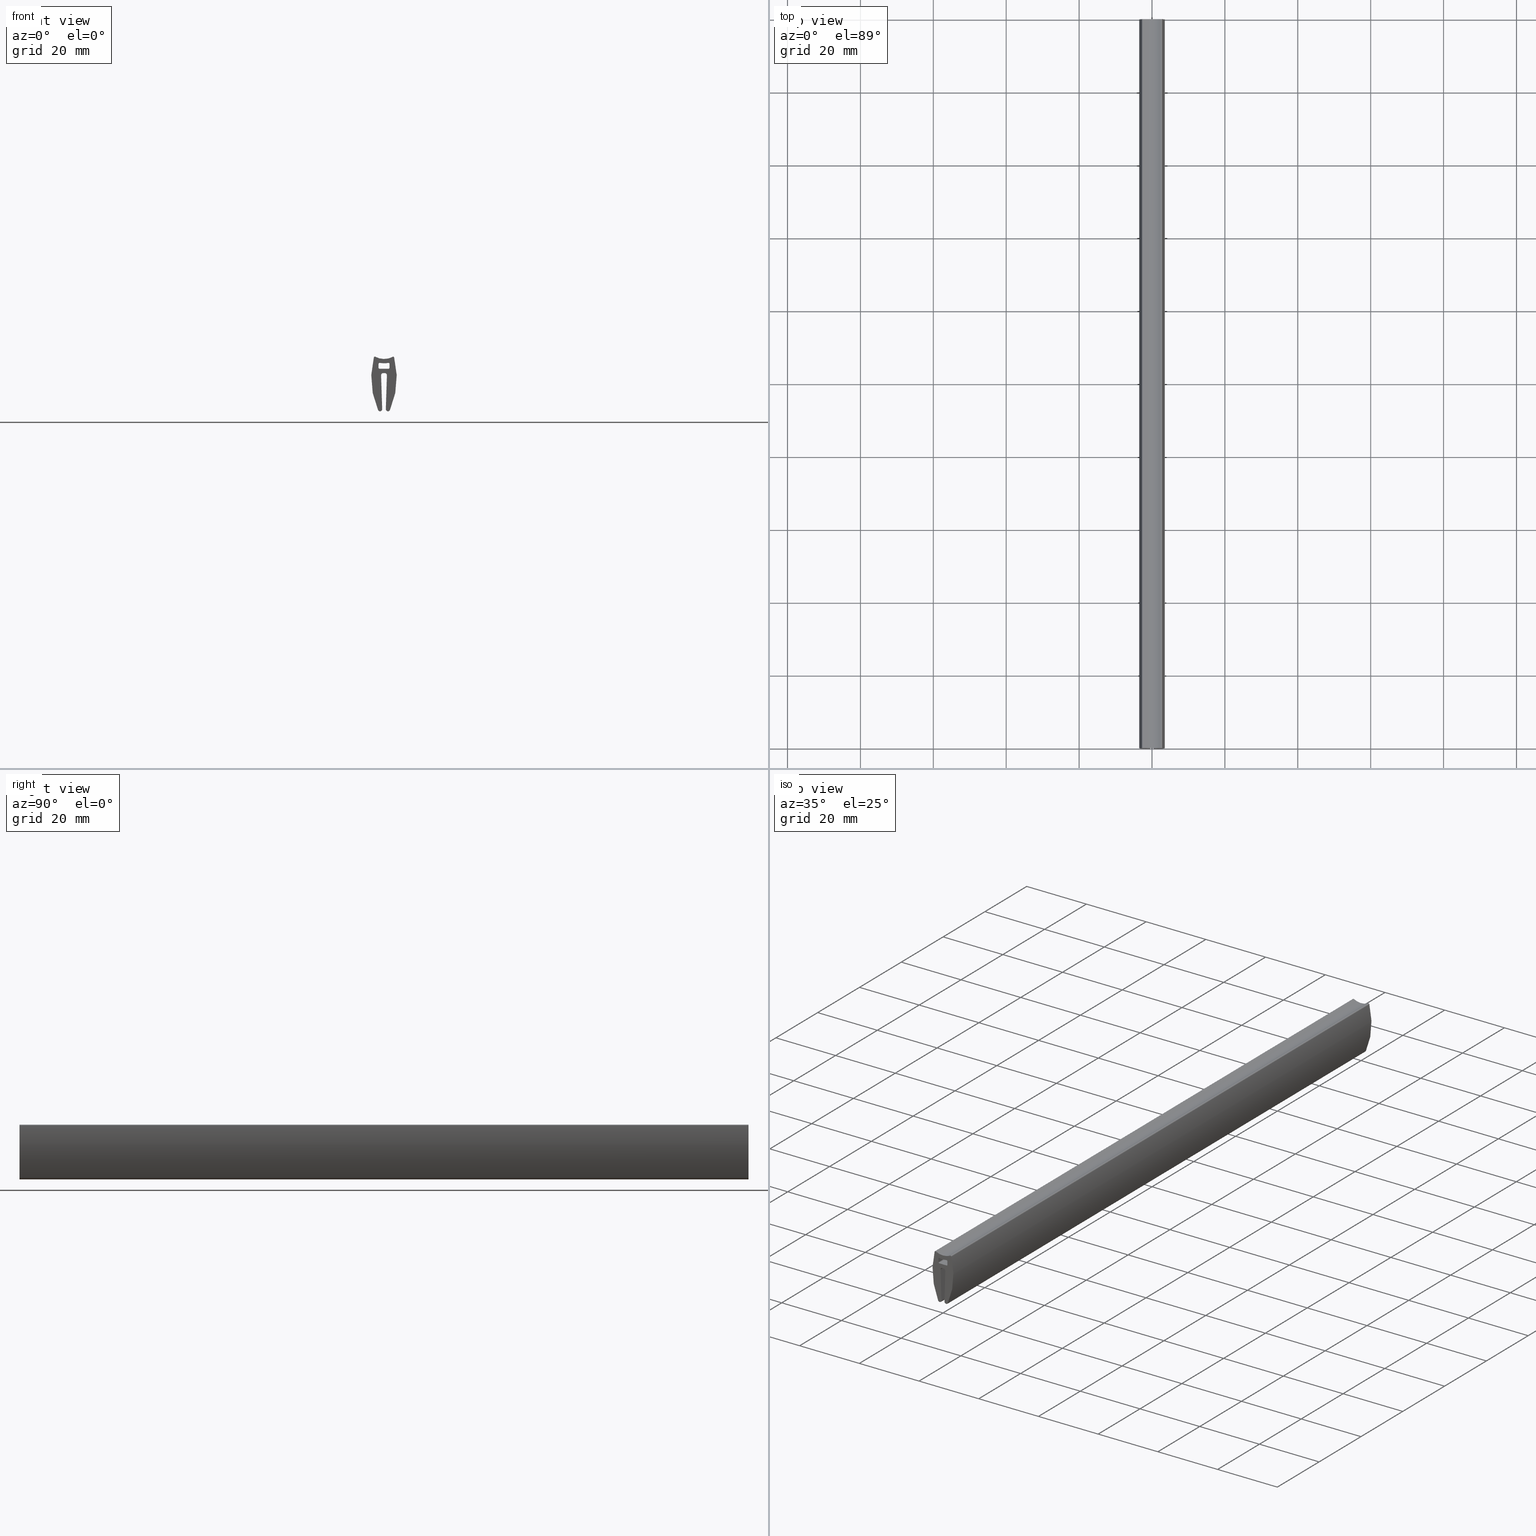
[diagram: canonical four-view strip — front | top / right | iso, engineering-drawing reading convention]
A machine part, canonical four-view strip (front | top / right | iso — engineering-drawing reading convention). The complete STEP part file that produces these views, byte-faithful:
ISO-10303-21;
HEADER;
/****************************************************************
 * Generated by software with PDE/Lib inside                    *
 * PDElib Version 4.4.1-0003, patched  Thursday August 19 11:58 *
 * International Technegroup Inc. (www.iti-oh.com)              *
 ****************************************************************/
FILE_DESCRIPTION((''),'2;1');
FILE_NAME('','2005-07-15T10:04:24',(''),(''),'','CADfix','');
FILE_SCHEMA(('AUTOMOTIVE_DESIGN'));
ENDSEC;
DATA;
#5=APPLICATION_CONTEXT('automotive design');
#6=APPLICATION_PROTOCOL_DEFINITION('Draft International Standard','automotive_design',1998,#5);
#7=PRODUCT_CONTEXT('None',#5,'mechanical');
#8=PRODUCT('gasket','','None',(#7));
#9=PRODUCT_RELATED_PRODUCT_CATEGORY('part','description',(#8));
#10=PRODUCT_DEFINITION_FORMATION('None','None',#8);
#11=PRODUCT_DEFINITION_CONTEXT('part definition',#5,'design');
#12=PRODUCT_DEFINITION('None','None',#10,#11);
#18=(NAMED_UNIT(*)PLANE_ANGLE_UNIT()SI_UNIT($,.RADIAN.));
#19=DIMENSIONAL_EXPONENTS(0.0,0.0,0.0,0.0,0.0,0.0,0.0);
#20=PLANE_ANGLE_MEASURE_WITH_UNIT(PLANE_ANGLE_MEASURE(0.017453292500000),#18);
#24=(CONVERSION_BASED_UNIT('DEGREE',#20)NAMED_UNIT(#19)PLANE_ANGLE_UNIT());
#28=(NAMED_UNIT(*)SI_UNIT($,.STERADIAN.)SOLID_ANGLE_UNIT());
#32=(LENGTH_UNIT()NAMED_UNIT(*)SI_UNIT(.MILLI.,.METRE.));
#34=UNCERTAINTY_MEASURE_WITH_UNIT(LENGTH_MEASURE(0.001000000000000),#32,'DISTANCE_ACCURACY_VALUE','');
#36=(GEOMETRIC_REPRESENTATION_CONTEXT(3)GLOBAL_UNCERTAINTY_ASSIGNED_CONTEXT((#34))GLOBAL_UNIT_ASSIGNED_CONTEXT((#24,#28,#32))REPRESENTATION_CONTEXT('None','None'));
#37=AXIS2_PLACEMENT_3D('',#38,#39,#40);
#38=CARTESIAN_POINT('',(0.0,0.0,0.0));
#39=DIRECTION('',(0.0,0.0,1.0));
#40=DIRECTION('',(1.0,0.0,0.0));
#41=ADVANCED_BREP_SHAPE_REPRESENTATION('',(#37,#1055),#36);
#42=PRODUCT_DEFINITION_SHAPE('','',#12);
#43=SHAPE_DEFINITION_REPRESENTATION(#42,#41);
#44=CARTESIAN_POINT('',(-3.848686032314022,0.0,1.375884219740015));
#45=CARTESIAN_POINT('',(3.848686085570946,0.0,1.375884219740015));
#46=CARTESIAN_POINT('',(-3.848686032314022,0.0,-15.122077586840909));
#47=CARTESIAN_POINT('',(3.848686085570946,0.0,-15.122077586840909));
#48=B_SPLINE_SURFACE_WITH_KNOTS('',1,1,((#44,#46),(#45,#47)),.UNSPECIFIED.,.F.,.F.,.U.,(2,2),(2,2),(0.0,7.697372117884967),(0.0,16.497961806580921),.UNSPECIFIED.);
#49=CARTESIAN_POINT('',(1.627461204812235,0.0,-14.022243352566640));
#50=VERTEX_POINT('',#49);
#51=CARTESIAN_POINT('',(2.790322580653415,0.0,0.402254483160042));
#52=VERTEX_POINT('',#51);
#53=CARTESIAN_POINT('',(1.627461204812235,0.0,-14.022243352566640));
#54=CARTESIAN_POINT('',(4.720688985627681,0.0,-7.012488265444718));
#55=CARTESIAN_POINT('',(2.790322580653415,0.0,0.402254483160042));
#63=(BOUNDED_CURVE()B_SPLINE_CURVE(2,(#53,#54,#55),.UNSPECIFIED.,.F.,.U.)CURVE()GEOMETRIC_REPRESENTATION_ITEM()QUASI_UNIFORM_CURVE()RATIONAL_B_SPLINE_CURVE((1.0,0.944367167422079,1.0))REPRESENTATION_ITEM(''));
#64=EDGE_CURVE('',#50,#52,#63,.T.);
#65=ORIENTED_EDGE('',*,*,#64,.T.);
#66=CARTESIAN_POINT('',(2.358490566046645,0.0,0.591199454509585));
#67=VERTEX_POINT('',#66);
#68=CARTESIAN_POINT('',(2.790322580653417,0.0,0.402254483160043));
#69=CARTESIAN_POINT('',(2.753640966004908,0.0,0.543152467874352));
#70=CARTESIAN_POINT('',(2.620255514252093,0.0,0.601514306523186));
#71=CARTESIAN_POINT('',(2.486870062499277,0.0,0.659876145172020));
#72=CARTESIAN_POINT('',(2.358490566046646,0.0,0.591199454509584));
#80=(BOUNDED_CURVE()B_SPLINE_CURVE(2,(#68,#69,#70,#71,#72),.UNSPECIFIED.,.F.,.U.)B_SPLINE_CURVE_WITH_KNOTS((3,2,3),(0.0,0.500000000000000,1.0),.UNSPECIFIED.)CURVE()GEOMETRIC_REPRESENTATION_ITEM()RATIONAL_B_SPLINE_CURVE((1.0,0.899649184279464,1.0,0.899649184279464,1.0))REPRESENTATION_ITEM(''));
#81=EDGE_CURVE('',#52,#67,#80,.T.);
#82=ORIENTED_EDGE('',*,*,#81,.T.);
#83=CARTESIAN_POINT('',(-2.358490566029425,0.0,0.591199454510275));
#84=VERTEX_POINT('',#83);
#85=CARTESIAN_POINT('',(-2.358490566029424,0.0,0.591199454510275));
#86=CARTESIAN_POINT('',(8.425136E-012,0.0,-0.670476525769673));
#87=CARTESIAN_POINT('',(2.358490566046645,0.0,0.591199454509585));
#95=(BOUNDED_CURVE()B_SPLINE_CURVE(2,(#85,#86,#87),.UNSPECIFIED.,.F.,.U.)CURVE()GEOMETRIC_REPRESENTATION_ITEM()QUASI_UNIFORM_CURVE()RATIONAL_B_SPLINE_CURVE((1.0,0.881760109097944,1.0))REPRESENTATION_ITEM(''));
#96=EDGE_CURVE('',#84,#67,#95,.T.);
#97=ORIENTED_EDGE('',*,*,#96,.F.);
#98=CARTESIAN_POINT('',(-2.790322580637395,0.0,0.402254483160228));
#99=VERTEX_POINT('',#98);
#100=CARTESIAN_POINT('',(-2.358490566029425,0.0,0.591199454510275));
#101=CARTESIAN_POINT('',(-2.486870062482400,0.0,0.659876145172955));
#102=CARTESIAN_POINT('',(-2.620255514235597,0.0,0.601514306523950));
#103=CARTESIAN_POINT('',(-2.753640965988794,0.0,0.543152467874945));
#104=CARTESIAN_POINT('',(-2.790322580637394,0.0,0.402254483160228));
#112=(BOUNDED_CURVE()B_SPLINE_CURVE(2,(#100,#101,#102,#103,#104),.UNSPECIFIED.,.F.,.U.)B_SPLINE_CURVE_WITH_KNOTS((3,2,3),(0.0,0.500000000000000,1.0),.UNSPECIFIED.)CURVE()GEOMETRIC_REPRESENTATION_ITEM()RATIONAL_B_SPLINE_CURVE((1.0,0.899649184279451,1.0,0.899649184279451,1.0))REPRESENTATION_ITEM(''));
#113=EDGE_CURVE('',#84,#99,#112,.T.);
#114=ORIENTED_EDGE('',*,*,#113,.T.);
#115=CARTESIAN_POINT('',(-1.627461204791730,0.0,-14.022243352574860));
#116=VERTEX_POINT('',#115);
#117=CARTESIAN_POINT('',(-2.790322580637395,0.0,0.402254483160228));
#118=CARTESIAN_POINT('',(-4.720688985612155,0.0,-7.012488265449623));
#119=CARTESIAN_POINT('',(-1.627461204791730,0.0,-14.022243352574860));
#127=(BOUNDED_CURVE()B_SPLINE_CURVE(2,(#117,#118,#119),.UNSPECIFIED.,.F.,.U.)CURVE()GEOMETRIC_REPRESENTATION_ITEM()QUASI_UNIFORM_CURVE()RATIONAL_B_SPLINE_CURVE((1.0,0.944367167422012,1.0))REPRESENTATION_ITEM(''));
#128=EDGE_CURVE('',#99,#116,#127,.T.);
#129=ORIENTED_EDGE('',*,*,#128,.T.);
#130=CARTESIAN_POINT('',(-0.500306627626724,0.0,-13.765540948015801));
#131=VERTEX_POINT('',#130);
#132=CARTESIAN_POINT('',(-1.627461204791732,0.0,-14.022243352574860));
#133=CARTESIAN_POINT('',(-1.431446960213562,0.0,-14.466443374506785));
#134=CARTESIAN_POINT('',(-0.958043095485059,0.0,-14.358628605472170));
#135=CARTESIAN_POINT('',(-0.484639230756555,0.0,-14.250813836437551));
#136=CARTESIAN_POINT('',(-0.500306627626724,0.0,-13.765540948015801));
#144=(BOUNDED_CURVE()B_SPLINE_CURVE(2,(#132,#133,#134,#135,#136),.UNSPECIFIED.,.F.,.U.)B_SPLINE_CURVE_WITH_KNOTS((3,2,3),(0.0,0.500000000000000,1.0),.UNSPECIFIED.)CURVE()GEOMETRIC_REPRESENTATION_ITEM()RATIONAL_B_SPLINE_CURVE((1.0,0.771517611672876,1.0,0.771517611672876,1.0))REPRESENTATION_ITEM(''));
#145=EDGE_CURVE('',#116,#131,#144,.T.);
#146=ORIENTED_EDGE('',*,*,#145,.T.);
#147=CARTESIAN_POINT('',(-0.799687533444740,0.0,-4.492689937182320));
#148=VERTEX_POINT('',#147);
#149=CARTESIAN_POINT('',(-0.500306627626724,0.0,-13.765540948015801));
#150=CARTESIAN_POINT('',(-0.799687533444740,0.0,-4.492689937182320));
#151=QUASI_UNIFORM_CURVE('',1,(#149,#150),.UNSPECIFIED.,.F.,.U.);
#152=EDGE_CURVE('',#131,#148,#151,.T.);
#153=ORIENTED_EDGE('',*,*,#152,.T.);
#154=CARTESIAN_POINT('',(-0.199999999991572,0.0,-3.873328578220005));
#155=VERTEX_POINT('',#154);
#156=CARTESIAN_POINT('',(-0.199999999991573,0.0,-3.873328578220000));
#157=CARTESIAN_POINT('',(-0.454219076176954,0.0,-3.873328578220001));
#158=CARTESIAN_POINT('',(-0.631054993801754,0.0,-4.055965915405866));
#159=CARTESIAN_POINT('',(-0.807890911426554,0.0,-4.238603252591733));
#160=CARTESIAN_POINT('',(-0.799687533444730,0.0,-4.492689937182320));
#168=(BOUNDED_CURVE()B_SPLINE_CURVE(2,(#156,#157,#158,#159,#160),.UNSPECIFIED.,.F.,.U.)B_SPLINE_CURVE_WITH_KNOTS((3,2,3),(0.0,0.500000000000000,1.0),.UNSPECIFIED.)CURVE()GEOMETRIC_REPRESENTATION_ITEM()RATIONAL_B_SPLINE_CURVE((1.0,0.920761760181089,1.0,0.920761760181089,1.0))REPRESENTATION_ITEM(''));
#169=EDGE_CURVE('',#155,#148,#168,.T.);
#170=ORIENTED_EDGE('',*,*,#169,.F.);
#171=CARTESIAN_POINT('',(0.200000000004309,0.0,-3.873328578219955));
#172=VERTEX_POINT('',#171);
#173=CARTESIAN_POINT('',(-0.199999999991572,0.0,-3.873328578220005));
#174=CARTESIAN_POINT('',(0.200000000004309,0.0,-3.873328578219955));
#175=QUASI_UNIFORM_CURVE('',1,(#173,#174),.UNSPECIFIED.,.F.,.U.);
#176=EDGE_CURVE('',#155,#172,#175,.T.);
#177=ORIENTED_EDGE('',*,*,#176,.T.);
#178=CARTESIAN_POINT('',(0.799687533461706,0.0,-4.492689937182295));
#179=VERTEX_POINT('',#178);
#180=CARTESIAN_POINT('',(0.799687533461706,0.0,-4.492689937182295));
#181=CARTESIAN_POINT('',(0.807890911441804,0.0,-4.238603252591124));
#182=CARTESIAN_POINT('',(0.631054993816011,0.0,-4.055965915405486));
#183=CARTESIAN_POINT('',(0.454219076190218,0.0,-3.873328578219846));
#184=CARTESIAN_POINT('',(0.200000000004309,0.0,-3.873328578219955));
#192=(BOUNDED_CURVE()B_SPLINE_CURVE(2,(#180,#181,#182,#183,#184),.UNSPECIFIED.,.F.,.U.)B_SPLINE_CURVE_WITH_KNOTS((3,2,3),(0.0,0.500000000000000,1.0),.UNSPECIFIED.)CURVE()GEOMETRIC_REPRESENTATION_ITEM()RATIONAL_B_SPLINE_CURVE((1.0,0.920761760181758,1.0,0.920761760181758,1.0))REPRESENTATION_ITEM(''));
#193=EDGE_CURVE('',#179,#172,#192,.T.);
#194=ORIENTED_EDGE('',*,*,#193,.F.);
#195=CARTESIAN_POINT('',(0.500306627621377,0.0,-13.765540948000400));
#196=VERTEX_POINT('',#195);
#197=CARTESIAN_POINT('',(0.799687533461706,0.0,-4.492689937182295));
#198=CARTESIAN_POINT('',(0.500306627621377,0.0,-13.765540948000400));
#199=QUASI_UNIFORM_CURVE('',1,(#197,#198),.UNSPECIFIED.,.F.,.U.);
#200=EDGE_CURVE('',#179,#196,#199,.T.);
#201=ORIENTED_EDGE('',*,*,#200,.T.);
#202=CARTESIAN_POINT('',(0.500306627621371,0.0,-13.765540948000400));
#203=CARTESIAN_POINT('',(0.484639230749580,0.0,-14.250813836433942));
#204=CARTESIAN_POINT('',(0.958043095489516,0.0,-14.358628605471710));
#205=CARTESIAN_POINT('',(1.431446960229453,0.0,-14.466443374509472));
#206=CARTESIAN_POINT('',(1.627461204812235,0.0,-14.022243352566640));
#214=(BOUNDED_CURVE()B_SPLINE_CURVE(2,(#202,#203,#204,#205,#206),.UNSPECIFIED.,.F.,.U.)B_SPLINE_CURVE_WITH_KNOTS((3,2,3),(0.0,0.500000000000000,1.0),.UNSPECIFIED.)CURVE()GEOMETRIC_REPRESENTATION_ITEM()RATIONAL_B_SPLINE_CURVE((1.0,0.771517611672409,1.0,0.771517611672409,1.0))REPRESENTATION_ITEM(''));
#215=EDGE_CURVE('',#196,#50,#214,.T.);
#216=ORIENTED_EDGE('',*,*,#215,.T.);
#217=EDGE_LOOP('',(#65,#82,#97,#114,#129,#146,#153,#170,#177,#194,#201,#216));
#218=FACE_OUTER_BOUND('',#217,.T.);
#219=CARTESIAN_POINT('',(-1.144722876363488,0.0,-1.093407076129692));
#220=VERTEX_POINT('',#219);
#221=CARTESIAN_POINT('',(-1.499999999991580,0.0,-1.388270501469974));
#222=VERTEX_POINT('',#221);
#223=CARTESIAN_POINT('',(-1.144722876363487,0.0,-1.093407076129690));
#224=CARTESIAN_POINT('',(-1.283188890518358,0.0,-1.067449285759813));
#225=CARTESIAN_POINT('',(-1.391594445254965,0.0,-1.157420834924378));
#226=CARTESIAN_POINT('',(-1.499999999991572,0.0,-1.247392384088944));
#227=CARTESIAN_POINT('',(-1.499999999991580,0.0,-1.388270501469974));
#235=(BOUNDED_CURVE()B_SPLINE_CURVE(2,(#223,#224,#225,#226,#227),.UNSPECIFIED.,.F.,.U.)B_SPLINE_CURVE_WITH_KNOTS((3,2,3),(0.0,0.500000000000000,1.0),.UNSPECIFIED.)CURVE()GEOMETRIC_REPRESENTATION_ITEM()RATIONAL_B_SPLINE_CURVE((1.0,0.905165219967597,1.0,0.905165219967597,1.0))REPRESENTATION_ITEM(''));
#236=EDGE_CURVE('',#220,#222,#235,.T.);
#237=ORIENTED_EDGE('',*,*,#236,.F.);
#238=CARTESIAN_POINT('',(1.144722866473624,0.0,-1.093407056728742));
#239=VERTEX_POINT('',#238);
#240=CARTESIAN_POINT('',(-1.144722876363488,0.0,-1.093407076129692));
#241=CARTESIAN_POINT('',(-3.122576E-009,0.0,-1.308457601878935));
#242=CARTESIAN_POINT('',(1.144722866473624,0.0,-1.093407056728742));
#250=(BOUNDED_CURVE()B_SPLINE_CURVE(2,(#240,#241,#242),.UNSPECIFIED.,.F.,.U.)CURVE()GEOMETRIC_REPRESENTATION_ITEM()QUASI_UNIFORM_CURVE()RATIONAL_B_SPLINE_CURVE((1.0,0.982807589703323,1.0))REPRESENTATION_ITEM(''));
#251=EDGE_CURVE('',#220,#239,#250,.T.);
#252=ORIENTED_EDGE('',*,*,#251,.T.);
#253=CARTESIAN_POINT('',(1.500000000008415,0.0,-1.388270501470000));
#254=VERTEX_POINT('',#253);
#255=CARTESIAN_POINT('',(1.500000000008413,0.0,-1.388270501470000));
#256=CARTESIAN_POINT('',(1.500000004080066,0.0,-1.247392377302780));
#257=CARTESIAN_POINT('',(1.391594445797795,0.0,-1.157420821784475));
#258=CARTESIAN_POINT('',(1.283188887515523,0.0,-1.067449266266169));
#259=CARTESIAN_POINT('',(1.144722866473624,0.0,-1.093407056728742));
#267=(BOUNDED_CURVE()B_SPLINE_CURVE(2,(#255,#256,#257,#258,#259),.UNSPECIFIED.,.F.,.U.)B_SPLINE_CURVE_WITH_KNOTS((3,2,3),(0.0,0.500000000000000,1.0),.UNSPECIFIED.)CURVE()GEOMETRIC_REPRESENTATION_ITEM()RATIONAL_B_SPLINE_CURVE((1.0,0.905165217784808,1.0,0.905165217784808,1.0))REPRESENTATION_ITEM(''));
#268=EDGE_CURVE('',#254,#239,#267,.T.);
#269=ORIENTED_EDGE('',*,*,#268,.F.);
#270=CARTESIAN_POINT('',(1.500000000008420,0.0,-2.399999999999955));
#271=VERTEX_POINT('',#270);
#272=CARTESIAN_POINT('',(1.500000000008415,0.0,-1.388270501470000));
#273=CARTESIAN_POINT('',(1.500000000008420,0.0,-2.399999999999955));
#274=QUASI_UNIFORM_CURVE('',1,(#272,#273),.UNSPECIFIED.,.F.,.U.);
#275=EDGE_CURVE('',#254,#271,#274,.T.);
#276=ORIENTED_EDGE('',*,*,#275,.T.);
#277=CARTESIAN_POINT('',(1.200000000008410,0.0,-2.699999999999965));
#278=VERTEX_POINT('',#277);
#279=CARTESIAN_POINT('',(1.200000000008410,0.0,-2.699999999999966));
#280=CARTESIAN_POINT('',(1.500000000008421,0.0,-2.699999999999967));
#281=CARTESIAN_POINT('',(1.500000000008421,0.0,-2.399999999999955));
#289=(BOUNDED_CURVE()B_SPLINE_CURVE(2,(#279,#280,#281),.UNSPECIFIED.,.F.,.U.)CURVE()GEOMETRIC_REPRESENTATION_ITEM()QUASI_UNIFORM_CURVE()RATIONAL_B_SPLINE_CURVE((1.0,0.707106781186548,1.0))REPRESENTATION_ITEM(''));
#290=EDGE_CURVE('',#278,#271,#289,.T.);
#291=ORIENTED_EDGE('',*,*,#290,.F.);
#292=CARTESIAN_POINT('',(-1.199999999991572,0.0,-2.700000000000000));
#293=VERTEX_POINT('',#292);
#294=CARTESIAN_POINT('',(1.200000000008410,0.0,-2.699999999999965));
#295=CARTESIAN_POINT('',(-1.199999999991572,0.0,-2.700000000000000));
#296=QUASI_UNIFORM_CURVE('',1,(#294,#295),.UNSPECIFIED.,.F.,.U.);
#297=EDGE_CURVE('',#278,#293,#296,.T.);
#298=ORIENTED_EDGE('',*,*,#297,.T.);
#299=CARTESIAN_POINT('',(-1.499999999991584,0.0,-2.399999999999955));
#300=VERTEX_POINT('',#299);
#301=CARTESIAN_POINT('',(-1.499999999991583,0.0,-2.399999999999955));
#302=CARTESIAN_POINT('',(-1.499999999991583,0.0,-2.699999999999967));
#303=CARTESIAN_POINT('',(-1.199999999991572,0.0,-2.700000000000000));
#311=(BOUNDED_CURVE()B_SPLINE_CURVE(2,(#301,#302,#303),.UNSPECIFIED.,.F.,.U.)CURVE()GEOMETRIC_REPRESENTATION_ITEM()QUASI_UNIFORM_CURVE()RATIONAL_B_SPLINE_CURVE((1.0,0.707106781186548,1.0))REPRESENTATION_ITEM(''));
#312=EDGE_CURVE('',#300,#293,#311,.T.);
#313=ORIENTED_EDGE('',*,*,#312,.F.);
#314=CARTESIAN_POINT('',(-1.499999999991584,0.0,-2.399999999999955));
#315=CARTESIAN_POINT('',(-1.499999999991580,0.0,-1.388270501469974));
#316=QUASI_UNIFORM_CURVE('',1,(#314,#315),.UNSPECIFIED.,.F.,.U.);
#317=EDGE_CURVE('',#300,#222,#316,.T.);
#318=ORIENTED_EDGE('',*,*,#317,.T.);
#319=EDGE_LOOP('',(#237,#252,#269,#276,#291,#298,#313,#318));
#320=FACE_BOUND('',#319,.T.);
#321=ADVANCED_FACE('',(#218,#320),#48,.F.);
#322=CARTESIAN_POINT('',(-3.848686032314007,200.0,1.375884219740023));
#323=CARTESIAN_POINT('',(3.848686085570912,200.0,1.375884219740023));
#324=CARTESIAN_POINT('',(-3.848686032314006,200.0,-15.122077586840909));
#325=CARTESIAN_POINT('',(3.848686085570912,200.0,-15.122077586840909));
#326=B_SPLINE_SURFACE_WITH_KNOTS('',1,1,((#322,#324),(#323,#325)),.UNSPECIFIED.,.F.,.F.,.U.,(2,2),(2,2),(0.0,7.697372117884919),(0.0,16.497961806580928),.UNSPECIFIED.);
#327=CARTESIAN_POINT('',(1.627461204812235,200.0,-14.022243352566640));
#328=VERTEX_POINT('',#327);
#329=CARTESIAN_POINT('',(2.790322580653415,200.0,0.402254483160042));
#330=VERTEX_POINT('',#329);
#331=CARTESIAN_POINT('',(1.627461204812108,200.0,-14.022243352566580));
#332=CARTESIAN_POINT('',(4.720688985627681,200.000000000000030,-7.012488265444718));
#333=CARTESIAN_POINT('',(2.790322580653388,200.0,0.402254483160037));
#341=(BOUNDED_CURVE()B_SPLINE_CURVE(2,(#331,#332,#333),.UNSPECIFIED.,.F.,.U.)CURVE()GEOMETRIC_REPRESENTATION_ITEM()QUASI_UNIFORM_CURVE()RATIONAL_B_SPLINE_CURVE((1.0,0.944367167422079,1.0))REPRESENTATION_ITEM(''));
#342=EDGE_CURVE('',#328,#330,#341,.T.);
#343=ORIENTED_EDGE('',*,*,#342,.F.);
#344=CARTESIAN_POINT('',(0.500306627621377,200.0,-13.765540948000400));
#345=VERTEX_POINT('',#344);
#346=CARTESIAN_POINT('',(0.500306627621371,200.0,-13.765540948000400));
#347=CARTESIAN_POINT('',(0.484639230749580,200.000000000000090,-14.250813836433942));
#348=CARTESIAN_POINT('',(0.958043095489516,200.0,-14.358628605471710));
#349=CARTESIAN_POINT('',(1.431446960229453,200.000000000000090,-14.466443374509472));
#350=CARTESIAN_POINT('',(1.627461204812235,200.0,-14.022243352566640));
#358=(BOUNDED_CURVE()B_SPLINE_CURVE(2,(#346,#347,#348,#349,#350),.UNSPECIFIED.,.F.,.U.)B_SPLINE_CURVE_WITH_KNOTS((3,2,3),(0.0,0.500000000000000,1.0),.UNSPECIFIED.)CURVE()GEOMETRIC_REPRESENTATION_ITEM()RATIONAL_B_SPLINE_CURVE((1.0,0.771517611672409,1.0,0.771517611672409,1.0))REPRESENTATION_ITEM(''));
#359=EDGE_CURVE('',#345,#328,#358,.T.);
#360=ORIENTED_EDGE('',*,*,#359,.F.);
#361=CARTESIAN_POINT('',(0.799687533461706,200.0,-4.492689937182295));
#362=VERTEX_POINT('',#361);
#363=CARTESIAN_POINT('',(0.799687533461706,200.0,-4.492689937182295));
#364=CARTESIAN_POINT('',(0.500306627621377,200.0,-13.765540948000400));
#365=QUASI_UNIFORM_CURVE('',1,(#363,#364),.UNSPECIFIED.,.F.,.U.);
#366=EDGE_CURVE('',#362,#345,#365,.T.);
#367=ORIENTED_EDGE('',*,*,#366,.F.);
#368=CARTESIAN_POINT('',(0.200000000004309,200.0,-3.873328578219955));
#369=VERTEX_POINT('',#368);
#370=CARTESIAN_POINT('',(0.799687533461706,200.0,-4.492689937182295));
#371=CARTESIAN_POINT('',(0.807890911441804,200.0,-4.238603252591124));
#372=CARTESIAN_POINT('',(0.631054993816011,200.0,-4.055965915405486));
#373=CARTESIAN_POINT('',(0.454219076190218,200.0,-3.873328578219846));
#374=CARTESIAN_POINT('',(0.200000000004309,200.0,-3.873328578219846));
#382=(BOUNDED_CURVE()B_SPLINE_CURVE(2,(#370,#371,#372,#373,#374),.UNSPECIFIED.,.F.,.U.)B_SPLINE_CURVE_WITH_KNOTS((3,2,3),(0.0,0.500000000000000,1.0),.UNSPECIFIED.)CURVE()GEOMETRIC_REPRESENTATION_ITEM()RATIONAL_B_SPLINE_CURVE((1.0,0.920761760181758,1.0,0.920761760181758,1.0))REPRESENTATION_ITEM(''));
#383=EDGE_CURVE('',#362,#369,#382,.T.);
#384=ORIENTED_EDGE('',*,*,#383,.T.);
#385=CARTESIAN_POINT('',(-0.199999999991572,200.0,-3.873328578220005));
#386=VERTEX_POINT('',#385);
#387=CARTESIAN_POINT('',(-0.199999999991572,200.0,-3.873328578220005));
#388=CARTESIAN_POINT('',(0.200000000004309,200.0,-3.873328578219955));
#389=QUASI_UNIFORM_CURVE('',1,(#387,#388),.UNSPECIFIED.,.F.,.U.);
#390=EDGE_CURVE('',#386,#369,#389,.T.);
#391=ORIENTED_EDGE('',*,*,#390,.F.);
#392=CARTESIAN_POINT('',(-0.799687533444740,200.0,-4.492689937182320));
#393=VERTEX_POINT('',#392);
#394=CARTESIAN_POINT('',(-0.199999999991573,200.0,-3.873328578220000));
#395=CARTESIAN_POINT('',(-0.454219076176954,200.000000000000030,-3.873328578220001));
#396=CARTESIAN_POINT('',(-0.631054993801754,200.0,-4.055965915405866));
#397=CARTESIAN_POINT('',(-0.807890911426554,200.000000000000030,-4.238603252591733));
#398=CARTESIAN_POINT('',(-0.799687533444730,200.0,-4.492689937182320));
#406=(BOUNDED_CURVE()B_SPLINE_CURVE(2,(#394,#395,#396,#397,#398),.UNSPECIFIED.,.F.,.U.)B_SPLINE_CURVE_WITH_KNOTS((3,2,3),(0.0,0.500000000000000,1.0),.UNSPECIFIED.)CURVE()GEOMETRIC_REPRESENTATION_ITEM()RATIONAL_B_SPLINE_CURVE((1.0,0.920761760181089,1.0,0.920761760181089,1.0))REPRESENTATION_ITEM(''));
#407=EDGE_CURVE('',#386,#393,#406,.T.);
#408=ORIENTED_EDGE('',*,*,#407,.T.);
#409=CARTESIAN_POINT('',(-0.500306627626724,200.0,-13.765540948015801));
#410=VERTEX_POINT('',#409);
#411=CARTESIAN_POINT('',(-0.500306627626724,200.0,-13.765540948015801));
#412=CARTESIAN_POINT('',(-0.799687533444740,200.0,-4.492689937182320));
#413=QUASI_UNIFORM_CURVE('',1,(#411,#412),.UNSPECIFIED.,.F.,.U.);
#414=EDGE_CURVE('',#410,#393,#413,.T.);
#415=ORIENTED_EDGE('',*,*,#414,.F.);
#416=CARTESIAN_POINT('',(-1.627461204791730,200.0,-14.022243352574860));
#417=VERTEX_POINT('',#416);
#418=CARTESIAN_POINT('',(-1.627461204791732,200.0,-14.022243352574860));
#419=CARTESIAN_POINT('',(-1.431446960213562,200.000000000000090,-14.466443374506785));
#420=CARTESIAN_POINT('',(-0.958043095485059,200.0,-14.358628605472170));
#421=CARTESIAN_POINT('',(-0.484639230756555,200.000000000000090,-14.250813836437551));
#422=CARTESIAN_POINT('',(-0.500306627626724,200.0,-13.765540948015801));
#430=(BOUNDED_CURVE()B_SPLINE_CURVE(2,(#418,#419,#420,#421,#422),.UNSPECIFIED.,.F.,.U.)B_SPLINE_CURVE_WITH_KNOTS((3,2,3),(0.0,0.500000000000000,1.0),.UNSPECIFIED.)CURVE()GEOMETRIC_REPRESENTATION_ITEM()RATIONAL_B_SPLINE_CURVE((1.0,0.771517611672876,1.0,0.771517611672876,1.0))REPRESENTATION_ITEM(''));
#431=EDGE_CURVE('',#417,#410,#430,.T.);
#432=ORIENTED_EDGE('',*,*,#431,.F.);
#433=CARTESIAN_POINT('',(-2.790322580637395,200.0,0.402254483160228));
#434=VERTEX_POINT('',#433);
#435=CARTESIAN_POINT('',(-2.790322580637395,200.0,0.402254483160228));
#436=CARTESIAN_POINT('',(-4.720688985612155,200.0,-7.012488265449623));
#437=CARTESIAN_POINT('',(-1.627461204791667,200.0,-14.022243352574840));
#445=(BOUNDED_CURVE()B_SPLINE_CURVE(2,(#435,#436,#437),.UNSPECIFIED.,.F.,.U.)CURVE()GEOMETRIC_REPRESENTATION_ITEM()QUASI_UNIFORM_CURVE()RATIONAL_B_SPLINE_CURVE((1.0,0.944367167422012,1.0))REPRESENTATION_ITEM(''));
#446=EDGE_CURVE('',#434,#417,#445,.T.);
#447=ORIENTED_EDGE('',*,*,#446,.F.);
#448=CARTESIAN_POINT('',(-2.358490566029425,200.0,0.591199454510275));
#449=VERTEX_POINT('',#448);
#450=CARTESIAN_POINT('',(-2.358490566029402,200.0,0.591199454510318));
#451=CARTESIAN_POINT('',(-2.486870062482400,200.000000000000060,0.659876145172955));
#452=CARTESIAN_POINT('',(-2.620255514235597,200.0,0.601514306523950));
#453=CARTESIAN_POINT('',(-2.753640965988794,200.000000000000060,0.543152467874945));
#454=CARTESIAN_POINT('',(-2.790322580637394,200.0,0.402254483160228));
#462=(BOUNDED_CURVE()B_SPLINE_CURVE(2,(#450,#451,#452,#453,#454),.UNSPECIFIED.,.F.,.U.)B_SPLINE_CURVE_WITH_KNOTS((3,2,3),(0.0,0.500000000000000,1.0),.UNSPECIFIED.)CURVE()GEOMETRIC_REPRESENTATION_ITEM()RATIONAL_B_SPLINE_CURVE((1.0,0.899649184279451,1.0,0.899649184279451,1.0))REPRESENTATION_ITEM(''));
#463=EDGE_CURVE('',#449,#434,#462,.T.);
#464=ORIENTED_EDGE('',*,*,#463,.F.);
#465=CARTESIAN_POINT('',(2.358490566046645,200.0,0.591199454509585));
#466=VERTEX_POINT('',#465);
#467=CARTESIAN_POINT('',(-2.358490566029424,200.0,0.591199454510275));
#468=CARTESIAN_POINT('',(8.425136E-012,200.000000000000030,-0.670476525769673));
#469=CARTESIAN_POINT('',(2.358490566046645,200.0,0.591199454509585));
#477=(BOUNDED_CURVE()B_SPLINE_CURVE(2,(#467,#468,#469),.UNSPECIFIED.,.F.,.U.)CURVE()GEOMETRIC_REPRESENTATION_ITEM()QUASI_UNIFORM_CURVE()RATIONAL_B_SPLINE_CURVE((1.0,0.881760109097944,1.0))REPRESENTATION_ITEM(''));
#478=EDGE_CURVE('',#449,#466,#477,.T.);
#479=ORIENTED_EDGE('',*,*,#478,.T.);
#480=CARTESIAN_POINT('',(2.790322580653417,200.0,0.402254483160043));
#481=CARTESIAN_POINT('',(2.753640966004908,200.000000000000030,0.543152467874352));
#482=CARTESIAN_POINT('',(2.620255514252093,200.0,0.601514306523186));
#483=CARTESIAN_POINT('',(2.486870062499277,200.000000000000030,0.659876145172020));
#484=CARTESIAN_POINT('',(2.358490566046646,200.0,0.591199454509584));
#492=(BOUNDED_CURVE()B_SPLINE_CURVE(2,(#480,#481,#482,#483,#484),.UNSPECIFIED.,.F.,.U.)B_SPLINE_CURVE_WITH_KNOTS((3,2,3),(0.0,0.500000000000000,1.0),.UNSPECIFIED.)CURVE()GEOMETRIC_REPRESENTATION_ITEM()RATIONAL_B_SPLINE_CURVE((1.0,0.899649184279464,1.0,0.899649184279464,1.0))REPRESENTATION_ITEM(''));
#493=EDGE_CURVE('',#330,#466,#492,.T.);
#494=ORIENTED_EDGE('',*,*,#493,.F.);
#495=EDGE_LOOP('',(#343,#360,#367,#384,#391,#408,#415,#432,#447,#464,#479,#494));
#496=FACE_OUTER_BOUND('',#495,.T.);
#497=CARTESIAN_POINT('',(-1.144722876363488,200.0,-1.093407076129692));
#498=VERTEX_POINT('',#497);
#499=CARTESIAN_POINT('',(-1.499999999991580,200.0,-1.388270501469974));
#500=VERTEX_POINT('',#499);
#501=CARTESIAN_POINT('',(-1.144722876363487,200.0,-1.093407076129690));
#502=CARTESIAN_POINT('',(-1.283188890518358,200.0,-1.067449285759813));
#503=CARTESIAN_POINT('',(-1.391594445254965,200.0,-1.157420834924378));
#504=CARTESIAN_POINT('',(-1.499999999991572,200.0,-1.247392384088944));
#505=CARTESIAN_POINT('',(-1.499999999991572,200.0,-1.388270501469974));
#513=(BOUNDED_CURVE()B_SPLINE_CURVE(2,(#501,#502,#503,#504,#505),.UNSPECIFIED.,.F.,.U.)B_SPLINE_CURVE_WITH_KNOTS((3,2,3),(0.0,0.500000000000000,1.0),.UNSPECIFIED.)CURVE()GEOMETRIC_REPRESENTATION_ITEM()RATIONAL_B_SPLINE_CURVE((1.0,0.905165219967597,1.0,0.905165219967597,1.0))REPRESENTATION_ITEM(''));
#514=EDGE_CURVE('',#498,#500,#513,.T.);
#515=ORIENTED_EDGE('',*,*,#514,.T.);
#516=CARTESIAN_POINT('',(-1.499999999991584,200.0,-2.399999999999955));
#517=VERTEX_POINT('',#516);
#518=CARTESIAN_POINT('',(-1.499999999991584,200.0,-2.399999999999955));
#519=CARTESIAN_POINT('',(-1.499999999991580,200.0,-1.388270501469974));
#520=QUASI_UNIFORM_CURVE('',1,(#518,#519),.UNSPECIFIED.,.F.,.U.);
#521=EDGE_CURVE('',#517,#500,#520,.T.);
#522=ORIENTED_EDGE('',*,*,#521,.F.);
#523=CARTESIAN_POINT('',(-1.199999999991572,200.0,-2.700000000000000));
#524=VERTEX_POINT('',#523);
#525=CARTESIAN_POINT('',(-1.499999999991583,200.0,-2.399999999999955));
#526=CARTESIAN_POINT('',(-1.499999999991583,200.0,-2.699999999999967));
#527=CARTESIAN_POINT('',(-1.199999999991572,200.0,-2.699999999999966));
#535=(BOUNDED_CURVE()B_SPLINE_CURVE(2,(#525,#526,#527),.UNSPECIFIED.,.F.,.U.)CURVE()GEOMETRIC_REPRESENTATION_ITEM()QUASI_UNIFORM_CURVE()RATIONAL_B_SPLINE_CURVE((1.0,0.707106781186548,1.0))REPRESENTATION_ITEM(''));
#536=EDGE_CURVE('',#517,#524,#535,.T.);
#537=ORIENTED_EDGE('',*,*,#536,.T.);
#538=CARTESIAN_POINT('',(1.200000000008410,200.0,-2.699999999999965));
#539=VERTEX_POINT('',#538);
#540=CARTESIAN_POINT('',(1.200000000008410,200.0,-2.699999999999965));
#541=CARTESIAN_POINT('',(-1.199999999991572,200.0,-2.700000000000000));
#542=QUASI_UNIFORM_CURVE('',1,(#540,#541),.UNSPECIFIED.,.F.,.U.);
#543=EDGE_CURVE('',#539,#524,#542,.T.);
#544=ORIENTED_EDGE('',*,*,#543,.F.);
#545=CARTESIAN_POINT('',(1.500000000008420,200.0,-2.399999999999955));
#546=VERTEX_POINT('',#545);
#547=CARTESIAN_POINT('',(1.200000000008410,200.0,-2.699999999999966));
#548=CARTESIAN_POINT('',(1.500000000008421,200.0,-2.699999999999967));
#549=CARTESIAN_POINT('',(1.500000000008421,200.0,-2.399999999999955));
#557=(BOUNDED_CURVE()B_SPLINE_CURVE(2,(#547,#548,#549),.UNSPECIFIED.,.F.,.U.)CURVE()GEOMETRIC_REPRESENTATION_ITEM()QUASI_UNIFORM_CURVE()RATIONAL_B_SPLINE_CURVE((1.0,0.707106781186548,1.0))REPRESENTATION_ITEM(''));
#558=EDGE_CURVE('',#539,#546,#557,.T.);
#559=ORIENTED_EDGE('',*,*,#558,.T.);
#560=CARTESIAN_POINT('',(1.500000000008415,200.0,-1.388270501470000));
#561=VERTEX_POINT('',#560);
#562=CARTESIAN_POINT('',(1.500000000008415,200.0,-1.388270501470000));
#563=CARTESIAN_POINT('',(1.500000000008420,200.0,-2.399999999999955));
#564=QUASI_UNIFORM_CURVE('',1,(#562,#563),.UNSPECIFIED.,.F.,.U.);
#565=EDGE_CURVE('',#561,#546,#564,.T.);
#566=ORIENTED_EDGE('',*,*,#565,.F.);
#567=CARTESIAN_POINT('',(1.144722866473624,200.0,-1.093407056728742));
#568=VERTEX_POINT('',#567);
#569=CARTESIAN_POINT('',(1.500000000008413,200.0,-1.388270501470000));
#570=CARTESIAN_POINT('',(1.500000004080066,200.000000000000060,-1.247392377302780));
#571=CARTESIAN_POINT('',(1.391594445797795,200.0,-1.157420821784475));
#572=CARTESIAN_POINT('',(1.283188887515523,200.000000000000060,-1.067449266266169));
#573=CARTESIAN_POINT('',(1.144722866473624,200.0,-1.093407056728742));
#581=(BOUNDED_CURVE()B_SPLINE_CURVE(2,(#569,#570,#571,#572,#573),.UNSPECIFIED.,.F.,.U.)B_SPLINE_CURVE_WITH_KNOTS((3,2,3),(0.0,0.500000000000000,1.0),.UNSPECIFIED.)CURVE()GEOMETRIC_REPRESENTATION_ITEM()RATIONAL_B_SPLINE_CURVE((1.0,0.905165217784808,1.0,0.905165217784808,1.0))REPRESENTATION_ITEM(''));
#582=EDGE_CURVE('',#561,#568,#581,.T.);
#583=ORIENTED_EDGE('',*,*,#582,.T.);
#584=CARTESIAN_POINT('',(-1.144722876363492,200.0,-1.093407076129707));
#585=CARTESIAN_POINT('',(-3.122576E-009,199.999999999999970,-1.308457601878935));
#586=CARTESIAN_POINT('',(1.144722866473618,200.0,-1.093407056728713));
#594=(BOUNDED_CURVE()B_SPLINE_CURVE(2,(#584,#585,#586),.UNSPECIFIED.,.F.,.U.)CURVE()GEOMETRIC_REPRESENTATION_ITEM()QUASI_UNIFORM_CURVE()RATIONAL_B_SPLINE_CURVE((1.0,0.982807589703323,1.0))REPRESENTATION_ITEM(''));
#595=EDGE_CURVE('',#498,#568,#594,.T.);
#596=ORIENTED_EDGE('',*,*,#595,.F.);
#597=EDGE_LOOP('',(#515,#522,#537,#544,#559,#566,#583,#596));
#598=FACE_BOUND('',#597,.T.);
#599=ADVANCED_FACE('',(#496,#598),#326,.T.);
#600=CARTESIAN_POINT('',(-1.499999999991580,-9.989999612361171,-1.337734601867328));
#601=CARTESIAN_POINT('',(-1.499999999991580,-9.989999612361171,-2.450535990058267));
#602=CARTESIAN_POINT('',(-1.499999999991580,209.990004976779200,-1.337734601867328));
#603=CARTESIAN_POINT('',(-1.499999999991580,209.990004976779200,-2.450535990058267));
#604=B_SPLINE_SURFACE_WITH_KNOTS('',1,1,((#600,#602),(#601,#603)),.UNSPECIFIED.,.F.,.F.,.U.,(2,2),(2,2),(0.041708324148506,0.958291750357300),(0.0,219.980004589140410),.UNSPECIFIED.);
#605=ORIENTED_EDGE('',*,*,#317,.F.);
#606=CARTESIAN_POINT('',(-1.499999999991584,200.0,-2.399999999999955));
#607=CARTESIAN_POINT('',(-1.499999999991584,0.0,-2.399999999999955));
#608=QUASI_UNIFORM_CURVE('',1,(#606,#607),.UNSPECIFIED.,.F.,.U.);
#609=EDGE_CURVE('',#517,#300,#608,.T.);
#610=ORIENTED_EDGE('',*,*,#609,.F.);
#611=ORIENTED_EDGE('',*,*,#521,.T.);
#612=CARTESIAN_POINT('',(-1.499999999991580,200.0,-1.388270501469974));
#613=CARTESIAN_POINT('',(-1.499999999991580,0.0,-1.388270501469974));
#614=QUASI_UNIFORM_CURVE('',1,(#612,#613),.UNSPECIFIED.,.F.,.U.);
#615=EDGE_CURVE('',#500,#222,#614,.T.);
#616=ORIENTED_EDGE('',*,*,#615,.T.);
#617=EDGE_LOOP('',(#605,#610,#611,#616));
#618=FACE_OUTER_BOUND('',#617,.T.);
#619=ADVANCED_FACE('',(#618),#604,.T.);
#620=CARTESIAN_POINT('',(1.637316959718508,205.0,-13.998520519926910));
#621=CARTESIAN_POINT('',(1.637316959718508,-5.125000000000000,-13.998520519926910));
#622=CARTESIAN_POINT('',(1.451306974846208,205.0,-14.475349410532548));
#623=CARTESIAN_POINT('',(1.451306974846208,-5.125000000000000,-14.475349410532548));
#624=CARTESIAN_POINT('',(0.953230963821774,205.0,-14.357511417379330));
#625=CARTESIAN_POINT('',(0.953230963821774,-5.125000000000000,-14.357511417379330));
#626=CARTESIAN_POINT('',(0.455154952797341,205.0,-14.239673424226121));
#627=CARTESIAN_POINT('',(0.455154952797341,-5.125000000000000,-14.239673424226121));
#628=CARTESIAN_POINT('',(0.502527371733459,205.0,-13.730044775784410));
#629=CARTESIAN_POINT('',(0.502527371733459,-5.125000000000000,-13.730044775784410));
#637=(BOUNDED_SURFACE()B_SPLINE_SURFACE(1,2,((#620,#622,#624,#626,#628),(#621,#623,#625,#627,#629)),.UNSPECIFIED.,.F.,.F.,.U.)B_SPLINE_SURFACE_WITH_KNOTS((2,2),(3,2,3),(0.0,210.125000000000000),(0.0,1.0,2.0),.UNSPECIFIED.)GEOMETRIC_REPRESENTATION_ITEM()RATIONAL_B_SPLINE_SURFACE(((1.0,0.754709580222772,1.0,0.754709580222772,1.0),(1.0,0.754709580222772,1.0,0.754709580222772,1.0)))REPRESENTATION_ITEM('')SURFACE());
#638=ORIENTED_EDGE('',*,*,#215,.F.);
#639=CARTESIAN_POINT('',(0.500306627621377,200.0,-13.765540948000400));
#640=CARTESIAN_POINT('',(0.500306627621377,0.0,-13.765540948000400));
#641=QUASI_UNIFORM_CURVE('',1,(#639,#640),.UNSPECIFIED.,.F.,.U.);
#642=EDGE_CURVE('',#345,#196,#641,.T.);
#643=ORIENTED_EDGE('',*,*,#642,.F.);
#644=ORIENTED_EDGE('',*,*,#359,.T.);
#645=CARTESIAN_POINT('',(1.627461204812235,200.0,-14.022243352566640));
#646=CARTESIAN_POINT('',(1.627461204812235,0.0,-14.022243352566640));
#647=QUASI_UNIFORM_CURVE('',1,(#645,#646),.UNSPECIFIED.,.F.,.U.);
#648=EDGE_CURVE('',#328,#50,#647,.T.);
#649=ORIENTED_EDGE('',*,*,#648,.T.);
#650=EDGE_LOOP('',(#638,#643,#644,#649));
#651=FACE_OUTER_BOUND('',#650,.T.);
#652=ADVANCED_FACE('',(#651),#637,.T.);
#653=CARTESIAN_POINT('',(0.485352547403762,-9.989999612361194,-14.228719978982831));
#654=CARTESIAN_POINT('',(0.814641594942603,-9.989999612361194,-4.029511486540111));
#655=CARTESIAN_POINT('',(0.485352547403762,209.990004976779200,-14.228719978982831));
#656=CARTESIAN_POINT('',(0.814641594942603,209.990004976779200,-4.029511486540111));
#657=B_SPLINE_SURFACE_WITH_KNOTS('',1,1,((#653,#655),(#654,#656)),.UNSPECIFIED.,.F.,.F.,.U.,(2,2),(2,2),(0.0,10.204522779098721),(0.0,219.980004589140410),.UNSPECIFIED.);
#658=ORIENTED_EDGE('',*,*,#200,.F.);
#659=CARTESIAN_POINT('',(0.799687533461706,200.0,-4.492689937182295));
#660=CARTESIAN_POINT('',(0.799687533461706,0.0,-4.492689937182295));
#661=QUASI_UNIFORM_CURVE('',1,(#659,#660),.UNSPECIFIED.,.F.,.U.);
#662=EDGE_CURVE('',#362,#179,#661,.T.);
#663=ORIENTED_EDGE('',*,*,#662,.F.);
#664=ORIENTED_EDGE('',*,*,#366,.T.);
#665=ORIENTED_EDGE('',*,*,#642,.T.);
#666=EDGE_LOOP('',(#658,#663,#664,#665));
#667=FACE_OUTER_BOUND('',#666,.T.);
#668=ADVANCED_FACE('',(#667),#657,.T.);
#669=CARTESIAN_POINT('',(0.184293831019476,205.0,-3.873534183234514));
#670=CARTESIAN_POINT('',(0.184293831019476,-5.125000000000000,-3.873534183234514));
#671=CARTESIAN_POINT('',(0.850432992419154,205.000000000000030,-3.856090715399938));
#672=CARTESIAN_POINT('',(0.850432992419154,-5.124999999999999,-3.856090715399938));
#673=CARTESIAN_POINT('',(0.798150400248280,205.0,-4.520404035660985));
#674=CARTESIAN_POINT('',(0.798150400248280,-5.125000000000000,-4.520404035660985));
#682=(BOUNDED_SURFACE()B_SPLINE_SURFACE(1,2,((#669,#671,#673),(#670,#672,#674)),.UNSPECIFIED.,.F.,.F.,.U.)B_SPLINE_SURFACE_WITH_KNOTS((2,2),(3,3),(0.0,210.125000000000000),(0.0,1.0),.UNSPECIFIED.)GEOMETRIC_REPRESENTATION_ITEM()RATIONAL_B_SPLINE_SURFACE(((1.0,0.669130606358858,1.0),(1.0,0.669130606358858,1.0)))REPRESENTATION_ITEM('')SURFACE());
#683=ORIENTED_EDGE('',*,*,#193,.T.);
#684=CARTESIAN_POINT('',(0.200000000004309,200.0,-3.873328578219955));
#685=CARTESIAN_POINT('',(0.200000000004309,0.0,-3.873328578219955));
#686=QUASI_UNIFORM_CURVE('',1,(#684,#685),.UNSPECIFIED.,.F.,.U.);
#687=EDGE_CURVE('',#369,#172,#686,.T.);
#688=ORIENTED_EDGE('',*,*,#687,.F.);
#689=ORIENTED_EDGE('',*,*,#383,.F.);
#690=ORIENTED_EDGE('',*,*,#662,.T.);
#691=EDGE_LOOP('',(#683,#688,#689,#690));
#692=FACE_OUTER_BOUND('',#691,.T.);
#693=ADVANCED_FACE('',(#692),#682,.F.);
#694=CARTESIAN_POINT('',(0.219980002983739,-9.989999612361194,-3.873328578219955));
#695=CARTESIAN_POINT('',(-0.219980010123560,-9.989999612361194,-3.873328578219955));
#696=CARTESIAN_POINT('',(0.219980002983739,209.990004976779200,-3.873328578219955));
#697=CARTESIAN_POINT('',(-0.219980010123560,209.990004976779200,-3.873328578219955));
#698=B_SPLINE_SURFACE_WITH_KNOTS('',1,1,((#694,#696),(#695,#697)),.UNSPECIFIED.,.F.,.F.,.U.,(2,2),(2,2),(0.0,0.439960013107299),(0.0,219.980004589140410),.UNSPECIFIED.);
#699=ORIENTED_EDGE('',*,*,#176,.F.);
#700=CARTESIAN_POINT('',(-0.199999999991572,200.0,-3.873328578220005));
#701=CARTESIAN_POINT('',(-0.199999999991572,0.0,-3.873328578220005));
#702=QUASI_UNIFORM_CURVE('',1,(#700,#701),.UNSPECIFIED.,.F.,.U.);
#703=EDGE_CURVE('',#386,#155,#702,.T.);
#704=ORIENTED_EDGE('',*,*,#703,.F.);
#705=ORIENTED_EDGE('',*,*,#390,.T.);
#706=ORIENTED_EDGE('',*,*,#687,.T.);
#707=EDGE_LOOP('',(#699,#704,#705,#706));
#708=FACE_OUTER_BOUND('',#707,.T.);
#709=ADVANCED_FACE('',(#708),#698,.T.);
#710=CARTESIAN_POINT('',(-0.798272233176264,205.0,-4.518829512278568));
#711=CARTESIAN_POINT('',(-0.798272233176264,-5.125000000000000,-4.518829512278568));
#712=CARTESIAN_POINT('',(-0.849701683516880,205.000000000000090,-3.842605765593802));
#713=CARTESIAN_POINT('',(-0.849701683516880,-5.125000000000000,-3.842605765593802));
#714=CARTESIAN_POINT('',(-0.172250732751741,205.0,-3.873970606580636));
#715=CARTESIAN_POINT('',(-0.172250732751741,-5.125000000000000,-3.873970606580636));
#723=(BOUNDED_SURFACE()B_SPLINE_SURFACE(1,2,((#710,#712,#714),(#711,#713,#715)),.UNSPECIFIED.,.F.,.F.,.U.)B_SPLINE_SURFACE_WITH_KNOTS((2,2),(3,3),(0.0,210.125000000000000),(0.0,1.0),.UNSPECIFIED.)GEOMETRIC_REPRESENTATION_ITEM()RATIONAL_B_SPLINE_SURFACE(((1.0,0.662620048215738,1.0),(1.0,0.662620048215738,1.0)))REPRESENTATION_ITEM('')SURFACE());
#724=ORIENTED_EDGE('',*,*,#169,.T.);
#725=CARTESIAN_POINT('',(-0.799687533444740,200.0,-4.492689937182320));
#726=CARTESIAN_POINT('',(-0.799687533444740,0.0,-4.492689937182320));
#727=QUASI_UNIFORM_CURVE('',1,(#725,#726),.UNSPECIFIED.,.F.,.U.);
#728=EDGE_CURVE('',#393,#148,#727,.T.);
#729=ORIENTED_EDGE('',*,*,#728,.F.);
#730=ORIENTED_EDGE('',*,*,#407,.F.);
#731=ORIENTED_EDGE('',*,*,#703,.T.);
#732=EDGE_LOOP('',(#724,#729,#730,#731));
#733=FACE_OUTER_BOUND('',#732,.T.);
#734=ADVANCED_FACE('',(#733),#723,.F.);
#735=CARTESIAN_POINT('',(-0.814641606299716,-9.989999612361183,-4.029511134210662));
#736=CARTESIAN_POINT('',(-0.485352544065070,-9.989999612361183,-14.228720082610449));
#737=CARTESIAN_POINT('',(-0.814641606299716,209.990004976779200,-4.029511134210662));
#738=CARTESIAN_POINT('',(-0.485352544065070,209.990004976779200,-14.228720082610449));
#739=B_SPLINE_SURFACE_WITH_KNOTS('',1,1,((#735,#737),(#736,#738)),.UNSPECIFIED.,.F.,.F.,.U.,(2,2),(2,2),(0.0,10.204523235292561),(0.0,219.980004589140410),.UNSPECIFIED.);
#740=ORIENTED_EDGE('',*,*,#152,.F.);
#741=CARTESIAN_POINT('',(-0.500306627626724,200.0,-13.765540948015801));
#742=CARTESIAN_POINT('',(-0.500306627626724,0.0,-13.765540948015801));
#743=QUASI_UNIFORM_CURVE('',1,(#741,#742),.UNSPECIFIED.,.F.,.U.);
#744=EDGE_CURVE('',#410,#131,#743,.T.);
#745=ORIENTED_EDGE('',*,*,#744,.F.);
#746=ORIENTED_EDGE('',*,*,#414,.T.);
#747=ORIENTED_EDGE('',*,*,#728,.T.);
#748=EDGE_LOOP('',(#740,#745,#746,#747));
#749=FACE_OUTER_BOUND('',#748,.T.);
#750=ADVANCED_FACE('',(#749),#739,.T.);
#751=CARTESIAN_POINT('',(-0.501665580381628,205.0,-13.740284735717880));
#752=CARTESIAN_POINT('',(-0.501665580381628,-5.125000000000000,-13.740284735717880));
#753=CARTESIAN_POINT('',(-0.462854308058690,205.000000000000030,-14.255177338522596));
#754=CARTESIAN_POINT('',(-0.462854308058690,-5.125000000000000,-14.255177338522596));
#755=CARTESIAN_POINT('',(-0.968276045677280,205.0,-14.360863545876921));
#756=CARTESIAN_POINT('',(-0.968276045677280,-5.125000000000000,-14.360863545876921));
#757=CARTESIAN_POINT('',(-1.473697783295869,205.000000000000030,-14.466549753231249));
#758=CARTESIAN_POINT('',(-1.473697783295869,-5.125000000000000,-14.466549753231249));
#759=CARTESIAN_POINT('',(-1.644450605372002,205.0,-13.979246786858820));
#760=CARTESIAN_POINT('',(-1.644450605372002,-5.125000000000000,-13.979246786858820));
#768=(BOUNDED_SURFACE()B_SPLINE_SURFACE(1,2,((#751,#753,#755,#757,#759),(#752,#754,#756,#758,#760)),.UNSPECIFIED.,.F.,.F.,.U.)B_SPLINE_SURFACE_WITH_KNOTS((2,2),(3,2,3),(0.0,210.125000000000000),(0.0,1.0,2.0),.UNSPECIFIED.)GEOMETRIC_REPRESENTATION_ITEM()RATIONAL_B_SPLINE_SURFACE(((1.0,0.751839807478977,1.0,0.751839807478977,1.0),(1.0,0.751839807478977,1.0,0.751839807478977,1.0)))REPRESENTATION_ITEM('')SURFACE());
#769=ORIENTED_EDGE('',*,*,#145,.F.);
#770=CARTESIAN_POINT('',(-1.627461204791730,200.0,-14.022243352574860));
#771=CARTESIAN_POINT('',(-1.627461204791730,0.0,-14.022243352574860));
#772=QUASI_UNIFORM_CURVE('',1,(#770,#771),.UNSPECIFIED.,.F.,.U.);
#773=EDGE_CURVE('',#417,#116,#772,.T.);
#774=ORIENTED_EDGE('',*,*,#773,.F.);
#775=ORIENTED_EDGE('',*,*,#431,.T.);
#776=ORIENTED_EDGE('',*,*,#744,.T.);
#777=EDGE_LOOP('',(#769,#774,#775,#776));
#778=FACE_OUTER_BOUND('',#777,.T.);
#779=ADVANCED_FACE('',(#778),#768,.T.);
#780=CARTESIAN_POINT('',(-1.326882442973995,205.000000000000090,-14.674376257585536));
#781=CARTESIAN_POINT('',(-1.326882442973995,-5.125000000000001,-14.674376257585536));
#782=CARTESIAN_POINT('',(-5.001639145543403,205.000000000000030,-7.032259578980466));
#783=CARTESIAN_POINT('',(-5.001639145543403,-5.125000000000001,-7.032259578980466));
#784=CARTESIAN_POINT('',(-2.596574987079083,205.000000000000030,1.099250154529228));
#785=CARTESIAN_POINT('',(-2.596574987079083,-5.125000000000000,1.099250154529228));
#793=(BOUNDED_SURFACE()B_SPLINE_SURFACE(1,2,((#780,#782,#784),(#781,#783,#785)),.UNSPECIFIED.,.F.,.F.,.U.)B_SPLINE_SURFACE_WITH_KNOTS((2,2),(3,3),(0.0,210.125000000000110),(0.0,16.372346396564911),.UNSPECIFIED.)GEOMETRIC_REPRESENTATION_ITEM()RATIONAL_B_SPLINE_SURFACE(((0.999217683187613,0.928746991944258,0.991495072913396),(0.999217683187613,0.928746991944258,0.991495072913396)))REPRESENTATION_ITEM('')SURFACE());
#794=ORIENTED_EDGE('',*,*,#128,.F.);
#795=CARTESIAN_POINT('',(-2.790322580637395,200.0,0.402254483160228));
#796=CARTESIAN_POINT('',(-2.790322580637395,0.0,0.402254483160228));
#797=QUASI_UNIFORM_CURVE('',1,(#795,#796),.UNSPECIFIED.,.F.,.U.);
#798=EDGE_CURVE('',#434,#99,#797,.T.);
#799=ORIENTED_EDGE('',*,*,#798,.F.);
#800=ORIENTED_EDGE('',*,*,#446,.T.);
#801=ORIENTED_EDGE('',*,*,#773,.T.);
#802=EDGE_LOOP('',(#794,#799,#800,#801));
#803=FACE_OUTER_BOUND('',#802,.T.);
#804=ADVANCED_FACE('',(#803),#793,.T.);
#805=CARTESIAN_POINT('',(-2.792724019389648,205.0,0.392342179868296));
#806=CARTESIAN_POINT('',(-2.792724019389648,-5.125000000000000,0.392342179868296));
#807=CARTESIAN_POINT('',(-2.699006455673398,204.999999999999910,0.810083389774043));
#808=CARTESIAN_POINT('',(-2.699006455673398,-5.124999999999999,0.810083389774043));
#809=CARTESIAN_POINT('',(-2.338349456552679,205.000000000000060,0.579394791903096));
#810=CARTESIAN_POINT('',(-2.338349456552679,-5.124999999999999,0.579394791903096));
#818=(BOUNDED_SURFACE()B_SPLINE_SURFACE(1,2,((#805,#807,#809),(#806,#808,#810)),.UNSPECIFIED.,.F.,.F.,.U.)B_SPLINE_SURFACE_WITH_KNOTS((2,2),(3,3),(0.0,210.125000000000000),(0.0,0.999571773705352),.UNSPECIFIED.)GEOMETRIC_REPRESENTATION_ITEM()RATIONAL_B_SPLINE_SURFACE(((1.0,0.573759042133658,0.999634944827971),(1.0,0.573759042133658,0.999634944827971)))REPRESENTATION_ITEM('')SURFACE());
#819=ORIENTED_EDGE('',*,*,#113,.F.);
#820=CARTESIAN_POINT('',(-2.358490566029425,200.0,0.591199454510275));
#821=CARTESIAN_POINT('',(-2.358490566029425,0.0,0.591199454510275));
#822=QUASI_UNIFORM_CURVE('',1,(#820,#821),.UNSPECIFIED.,.F.,.U.);
#823=EDGE_CURVE('',#449,#84,#822,.T.);
#824=ORIENTED_EDGE('',*,*,#823,.F.);
#825=ORIENTED_EDGE('',*,*,#463,.T.);
#826=ORIENTED_EDGE('',*,*,#798,.T.);
#827=EDGE_LOOP('',(#819,#824,#825,#826));
#828=FACE_OUTER_BOUND('',#827,.T.);
#829=ADVANCED_FACE('',(#828),#818,.T.);
#830=CARTESIAN_POINT('',(2.396874316417799,205.0,0.611948779772842));
#831=CARTESIAN_POINT('',(2.396874316417799,-5.125000000000000,0.611948779772842));
#832=CARTESIAN_POINT('',(-0.110565462884211,205.0,-0.757683821425707));
#833=CARTESIAN_POINT('',(-0.110565462884211,-5.125000000000000,-0.757683821425707));
#834=CARTESIAN_POINT('',(-2.563573605416758,205.000000000000030,0.707204830233880));
#835=CARTESIAN_POINT('',(-2.563573605416758,-5.125000000000000,0.707204830233880));
#843=(BOUNDED_SURFACE()B_SPLINE_SURFACE(1,2,((#830,#832,#834),(#831,#833,#835)),.UNSPECIFIED.,.F.,.F.,.U.)B_SPLINE_SURFACE_WITH_KNOTS((2,2),(3,3),(0.0,210.125000000000000),(0.0,5.311253535326420),.UNSPECIFIED.)GEOMETRIC_REPRESENTATION_ITEM()RATIONAL_B_SPLINE_SURFACE(((1.0,0.867217906323495,0.997636223756993),(1.0,0.867217906323495,0.997636223756993)))REPRESENTATION_ITEM('')SURFACE());
#844=ORIENTED_EDGE('',*,*,#96,.T.);
#845=CARTESIAN_POINT('',(2.358490566046645,200.0,0.591199454509585));
#846=CARTESIAN_POINT('',(2.358490566046645,0.0,0.591199454509585));
#847=QUASI_UNIFORM_CURVE('',1,(#845,#846),.UNSPECIFIED.,.F.,.U.);
#848=EDGE_CURVE('',#466,#67,#847,.T.);
#849=ORIENTED_EDGE('',*,*,#848,.F.);
#850=ORIENTED_EDGE('',*,*,#478,.F.);
#851=ORIENTED_EDGE('',*,*,#823,.T.);
#852=EDGE_LOOP('',(#844,#849,#850,#851));
#853=FACE_OUTER_BOUND('',#852,.T.);
#854=ADVANCED_FACE('',(#853),#843,.F.);
#855=CARTESIAN_POINT('',(2.349580525325496,205.0,0.586236407161462));
#856=CARTESIAN_POINT('',(2.349580525325496,-5.125000000000000,0.586236407161462));
#857=CARTESIAN_POINT('',(2.720000956622731,205.000000000000090,0.800897281414883));
#858=CARTESIAN_POINT('',(2.720000956622731,-5.125000000000000,0.800897281414883));
#859=CARTESIAN_POINT('',(2.795320814491908,204.999999999999970,0.379450362019047));
#860=CARTESIAN_POINT('',(2.795320814491908,-5.124999999999999,0.379450362019047));
#868=(BOUNDED_SURFACE()B_SPLINE_SURFACE(1,2,((#855,#857,#859),(#856,#858,#860)),.UNSPECIFIED.,.F.,.F.,.U.)B_SPLINE_SURFACE_WITH_KNOTS((2,2),(3,3),(0.0,210.125000000000110),(0.0,0.999571596380044),.UNSPECIFIED.)GEOMETRIC_REPRESENTATION_ITEM()RATIONAL_B_SPLINE_SURFACE(((1.0,0.573759117749348,0.999634793726141),(1.0,0.573759117749348,0.999634793726141)))REPRESENTATION_ITEM('')SURFACE());
#869=ORIENTED_EDGE('',*,*,#81,.F.);
#870=CARTESIAN_POINT('',(2.790322580653415,200.0,0.402254483160042));
#871=CARTESIAN_POINT('',(2.790322580653415,0.0,0.402254483160042));
#872=QUASI_UNIFORM_CURVE('',1,(#870,#871),.UNSPECIFIED.,.F.,.U.);
#873=EDGE_CURVE('',#330,#52,#872,.T.);
#874=ORIENTED_EDGE('',*,*,#873,.F.);
#875=ORIENTED_EDGE('',*,*,#493,.T.);
#876=ORIENTED_EDGE('',*,*,#848,.T.);
#877=EDGE_LOOP('',(#869,#874,#875,#876));
#878=FACE_OUTER_BOUND('',#877,.T.);
#879=ADVANCED_FACE('',(#878),#868,.T.);
#880=CARTESIAN_POINT('',(2.598092822164210,205.000000000000060,1.094116065072664));
#881=CARTESIAN_POINT('',(2.598092822164210,-5.125000000000001,1.094116065072664));
#882=CARTESIAN_POINT('',(5.001178063542914,204.999999999999970,-7.037978630005141));
#883=CARTESIAN_POINT('',(5.001178063542914,-5.125000000000001,-7.037978630005141));
#884=CARTESIAN_POINT('',(1.324561823806598,205.000000000000030,-14.679200772617666));
#885=CARTESIAN_POINT('',(1.324561823806598,-5.125000000000000,-14.679200772617666));
#893=(BOUNDED_SURFACE()B_SPLINE_SURFACE(1,2,((#880,#882,#884),(#881,#883,#885)),.UNSPECIFIED.,.F.,.F.,.U.)B_SPLINE_SURFACE_WITH_KNOTS((2,2),(3,3),(0.0,210.125000000000110),(0.0,16.372346253659199),.UNSPECIFIED.)GEOMETRIC_REPRESENTATION_ITEM()RATIONAL_B_SPLINE_SURFACE(((0.999217682008975,0.928746992497031,0.991495072863468),(0.999217682008975,0.928746992497031,0.991495072863468)))REPRESENTATION_ITEM('')SURFACE());
#894=ORIENTED_EDGE('',*,*,#64,.F.);
#895=ORIENTED_EDGE('',*,*,#648,.F.);
#896=ORIENTED_EDGE('',*,*,#342,.T.);
#897=ORIENTED_EDGE('',*,*,#873,.T.);
#898=EDGE_LOOP('',(#894,#895,#896,#897));
#899=FACE_OUTER_BOUND('',#898,.T.);
#900=ADVANCED_FACE('',(#899),#893,.T.);
#901=CARTESIAN_POINT('',(-1.197382039342060,205.0,-2.699988576919218));
#902=CARTESIAN_POINT('',(-1.197382039342060,-5.125000000000000,-2.699988576919218));
#903=CARTESIAN_POINT('',(-1.519080402595111,205.000000000000060,-2.702795996003832));
#904=CARTESIAN_POINT('',(-1.519080402595111,-5.124999999999999,-2.702795996003832));
#905=CARTESIAN_POINT('',(-1.499440439518144,205.0,-2.381685438139497));
#906=CARTESIAN_POINT('',(-1.499440439518144,-5.125000000000000,-2.381685438139497));
#914=(BOUNDED_SURFACE()B_SPLINE_SURFACE(1,2,((#901,#903,#905),(#902,#904,#906)),.UNSPECIFIED.,.F.,.F.,.U.)B_SPLINE_SURFACE_WITH_KNOTS((2,2),(3,3),(0.0,210.125000000000110),(0.0,1.0),.UNSPECIFIED.)GEOMETRIC_REPRESENTATION_ITEM()RATIONAL_B_SPLINE_SURFACE(((1.0,0.681998360062499,1.0),(1.0,0.681998360062499,1.0)))REPRESENTATION_ITEM('')SURFACE());
#915=ORIENTED_EDGE('',*,*,#312,.T.);
#916=CARTESIAN_POINT('',(-1.199999999991572,200.0,-2.700000000000000));
#917=CARTESIAN_POINT('',(-1.199999999991572,0.0,-2.700000000000000));
#918=QUASI_UNIFORM_CURVE('',1,(#916,#917),.UNSPECIFIED.,.F.,.U.);
#919=EDGE_CURVE('',#524,#293,#918,.T.);
#920=ORIENTED_EDGE('',*,*,#919,.F.);
#921=ORIENTED_EDGE('',*,*,#536,.F.);
#922=ORIENTED_EDGE('',*,*,#609,.T.);
#923=EDGE_LOOP('',(#915,#920,#921,#922));
#924=FACE_OUTER_BOUND('',#923,.T.);
#925=ADVANCED_FACE('',(#924),#914,.F.);
#926=CARTESIAN_POINT('',(-1.319880062928354,-9.989999612361171,-2.700000000000000));
#927=CARTESIAN_POINT('',(1.319880062945192,-9.989999612361171,-2.700000000000000));
#928=CARTESIAN_POINT('',(-1.319880062928354,209.990004976779200,-2.700000000000000));
#929=CARTESIAN_POINT('',(1.319880062945192,209.990004976779200,-2.700000000000000));
#930=B_SPLINE_SURFACE_WITH_KNOTS('',1,1,((#926,#928),(#927,#929)),.UNSPECIFIED.,.F.,.F.,.U.,(2,2),(2,2),(0.0,2.639760125873545),(0.0,219.980004589140410),.UNSPECIFIED.);
#931=ORIENTED_EDGE('',*,*,#297,.F.);
#932=CARTESIAN_POINT('',(1.200000000008410,200.0,-2.699999999999965));
#933=CARTESIAN_POINT('',(1.200000000008410,0.0,-2.699999999999965));
#934=QUASI_UNIFORM_CURVE('',1,(#932,#933),.UNSPECIFIED.,.F.,.U.);
#935=EDGE_CURVE('',#539,#278,#934,.T.);
#936=ORIENTED_EDGE('',*,*,#935,.F.);
#937=ORIENTED_EDGE('',*,*,#543,.T.);
#938=ORIENTED_EDGE('',*,*,#919,.T.);
#939=EDGE_LOOP('',(#931,#936,#937,#938));
#940=FACE_OUTER_BOUND('',#939,.T.);
#941=ADVANCED_FACE('',(#940),#930,.T.);
#942=CARTESIAN_POINT('',(1.499988576927673,205.0,-2.397382039350443));
#943=CARTESIAN_POINT('',(1.499988576927673,-5.125000000000000,-2.397382039350443));
#944=CARTESIAN_POINT('',(1.502795996012285,205.000000000000060,-2.719080402603493));
#945=CARTESIAN_POINT('',(1.502795996012285,-5.124999999999999,-2.719080402603493));
#946=CARTESIAN_POINT('',(1.181685438147952,205.0,-2.699440439526526));
#947=CARTESIAN_POINT('',(1.181685438147952,-5.125000000000000,-2.699440439526526));
#955=(BOUNDED_SURFACE()B_SPLINE_SURFACE(1,2,((#942,#944,#946),(#943,#945,#947)),.UNSPECIFIED.,.F.,.F.,.U.)B_SPLINE_SURFACE_WITH_KNOTS((2,2),(3,3),(0.0,210.125000000000110),(0.0,1.0),.UNSPECIFIED.)GEOMETRIC_REPRESENTATION_ITEM()RATIONAL_B_SPLINE_SURFACE(((1.0,0.681998360062499,1.0),(1.0,0.681998360062499,1.0)))REPRESENTATION_ITEM('')SURFACE());
#956=ORIENTED_EDGE('',*,*,#290,.T.);
#957=CARTESIAN_POINT('',(1.500000000008420,200.0,-2.399999999999955));
#958=CARTESIAN_POINT('',(1.500000000008420,0.0,-2.399999999999955));
#959=QUASI_UNIFORM_CURVE('',1,(#957,#958),.UNSPECIFIED.,.F.,.U.);
#960=EDGE_CURVE('',#546,#271,#959,.T.);
#961=ORIENTED_EDGE('',*,*,#960,.F.);
#962=ORIENTED_EDGE('',*,*,#558,.F.);
#963=ORIENTED_EDGE('',*,*,#935,.T.);
#964=EDGE_LOOP('',(#956,#961,#962,#963));
#965=FACE_OUTER_BOUND('',#964,.T.);
#966=ADVANCED_FACE('',(#965),#955,.F.);
#967=CARTESIAN_POINT('',(1.500000000008420,-9.989999612361194,-2.450535990961917));
#968=CARTESIAN_POINT('',(1.500000000008420,-9.989999612361194,-1.337734582872570));
#969=CARTESIAN_POINT('',(1.500000000008420,209.990004976779200,-2.450535990961917));
#970=CARTESIAN_POINT('',(1.500000000008420,209.990004976779200,-1.337734582872570));
#971=B_SPLINE_SURFACE_WITH_KNOTS('',1,1,((#967,#969),(#968,#970)),.UNSPECIFIED.,.F.,.F.,.U.,(2,2),(2,2),(0.041708248898387,0.958291691496968),(0.0,219.980004589140410),.UNSPECIFIED.);
#972=ORIENTED_EDGE('',*,*,#275,.F.);
#973=CARTESIAN_POINT('',(1.500000000008415,200.0,-1.388270501470000));
#974=CARTESIAN_POINT('',(1.500000000008415,0.0,-1.388270501470000));
#975=QUASI_UNIFORM_CURVE('',1,(#973,#974),.UNSPECIFIED.,.F.,.U.);
#976=EDGE_CURVE('',#561,#254,#975,.T.);
#977=ORIENTED_EDGE('',*,*,#976,.F.);
#978=ORIENTED_EDGE('',*,*,#565,.T.);
#979=ORIENTED_EDGE('',*,*,#960,.T.);
#980=EDGE_LOOP('',(#972,#977,#978,#979));
#981=FACE_OUTER_BOUND('',#980,.T.);
#982=ADVANCED_FACE('',(#981),#971,.T.);
#983=CARTESIAN_POINT('',(1.137023183639225,205.0,-1.094955085457579));
#984=CARTESIAN_POINT('',(1.137023183639225,-5.125000000000000,-1.094955085457579));
#985=CARTESIAN_POINT('',(1.519279264732358,205.0,-1.012882114079408));
#986=CARTESIAN_POINT('',(1.519279264732358,-5.125000000000000,-1.012882114079408));
#987=CARTESIAN_POINT('',(1.499620513533660,205.0,-1.403355183144138));
#988=CARTESIAN_POINT('',(1.499620513533660,-5.125000000000000,-1.403355183144138));
#996=(BOUNDED_SURFACE()B_SPLINE_SURFACE(1,2,((#983,#985,#987),(#984,#986,#988)),.UNSPECIFIED.,.F.,.F.,.U.)B_SPLINE_SURFACE_WITH_KNOTS((2,2),(3,3),(0.0,210.125000000000000),(0.0,1.0),.UNSPECIFIED.)GEOMETRIC_REPRESENTATION_ITEM()RATIONAL_B_SPLINE_SURFACE(((1.0,0.608761429008720,1.0),(1.0,0.608761429008720,1.0)))REPRESENTATION_ITEM('')SURFACE());
#997=ORIENTED_EDGE('',*,*,#268,.T.);
#998=CARTESIAN_POINT('',(1.144722866473624,200.0,-1.093407056728742));
#999=CARTESIAN_POINT('',(1.144722866473624,0.0,-1.093407056728742));
#1000=QUASI_UNIFORM_CURVE('',1,(#998,#999),.UNSPECIFIED.,.F.,.U.);
#1001=EDGE_CURVE('',#568,#239,#1000,.T.);
#1002=ORIENTED_EDGE('',*,*,#1001,.F.);
#1003=ORIENTED_EDGE('',*,*,#582,.F.);
#1004=ORIENTED_EDGE('',*,*,#976,.T.);
#1005=EDGE_LOOP('',(#997,#1002,#1003,#1004));
#1006=FACE_OUTER_BOUND('',#1005,.T.);
#1007=ADVANCED_FACE('',(#1006),#996,.F.);
#1008=CARTESIAN_POINT('',(1.256597015562471,205.000000000000030,-1.071323078855087));
#1009=CARTESIAN_POINT('',(1.256597015562471,-5.125000000000000,-1.071323078855087));
#1010=CARTESIAN_POINT('',(-0.000226675027473,205.000000000000060,-1.331451052491734));
#1011=CARTESIAN_POINT('',(-0.000226675027473,-5.125000000000000,-1.331451052491734));
#1012=CARTESIAN_POINT('',(-1.257031741137473,205.000000000000030,-1.071233109803928));
#1013=CARTESIAN_POINT('',(-1.257031741137473,-5.125000000000000,-1.071233109803928));
#1021=(BOUNDED_SURFACE()B_SPLINE_SURFACE(1,2,((#1008,#1010,#1012),(#1009,#1011,#1013)),.UNSPECIFIED.,.F.,.F.,.U.)B_SPLINE_SURFACE_WITH_KNOTS((2,2),(3,3),(0.0,210.125000000000110),(0.0,2.539993292708823),.UNSPECIFIED.)GEOMETRIC_REPRESENTATION_ITEM()RATIONAL_B_SPLINE_SURFACE(((0.997607698686308,0.974911064445035,0.993558250825215),(0.997607698686308,0.974911064445035,0.993558250825215)))REPRESENTATION_ITEM('')SURFACE());
#1022=ORIENTED_EDGE('',*,*,#251,.F.);
#1023=CARTESIAN_POINT('',(-1.144722876363488,200.0,-1.093407076129692));
#1024=CARTESIAN_POINT('',(-1.144722876363488,0.0,-1.093407076129692));
#1025=QUASI_UNIFORM_CURVE('',1,(#1023,#1024),.UNSPECIFIED.,.F.,.U.);
#1026=EDGE_CURVE('',#498,#220,#1025,.T.);
#1027=ORIENTED_EDGE('',*,*,#1026,.F.);
#1028=ORIENTED_EDGE('',*,*,#595,.T.);
#1029=ORIENTED_EDGE('',*,*,#1001,.T.);
#1030=EDGE_LOOP('',(#1022,#1027,#1028,#1029));
#1031=FACE_OUTER_BOUND('',#1030,.T.);
#1032=ADVANCED_FACE('',(#1031),#1021,.T.);
#1033=CARTESIAN_POINT('',(-1.499838144094670,205.0,-1.398123792331918));
#1034=CARTESIAN_POINT('',(-1.499838144094670,-5.125000000000000,-1.398123792331918));
#1035=CARTESIAN_POINT('',(-1.513123147471049,205.000000000000030,-0.993857764606962));
#1036=CARTESIAN_POINT('',(-1.513123147471049,-5.125000000000002,-0.993857764606962));
#1037=CARTESIAN_POINT('',(-1.122403563137367,205.000000000000030,-1.098479554427918));
#1038=CARTESIAN_POINT('',(-1.122403563137367,-5.125000000000000,-1.098479554427918));
#1046=(BOUNDED_SURFACE()B_SPLINE_SURFACE(1,2,((#1033,#1035,#1037),(#1034,#1036,#1038)),.UNSPECIFIED.,.F.,.F.,.U.)B_SPLINE_SURFACE_WITH_KNOTS((2,2),(3,3),(0.0,210.125000000000000),(0.0,0.998615939804725),.UNSPECIFIED.)GEOMETRIC_REPRESENTATION_ITEM()RATIONAL_B_SPLINE_SURFACE(((1.0,0.595383576404231,0.998879973027494),(1.0,0.595383576404231,0.998879973027494)))REPRESENTATION_ITEM('')SURFACE());
#1047=ORIENTED_EDGE('',*,*,#236,.T.);
#1048=ORIENTED_EDGE('',*,*,#615,.F.);
#1049=ORIENTED_EDGE('',*,*,#514,.F.);
#1050=ORIENTED_EDGE('',*,*,#1026,.T.);
#1051=EDGE_LOOP('',(#1047,#1048,#1049,#1050));
#1052=FACE_OUTER_BOUND('',#1051,.T.);
#1053=ADVANCED_FACE('',(#1052),#1046,.F.);
#1054=CLOSED_SHELL('',(#321,#599,#619,#652,#668,#693,#709,#734,#750,#779,#804,#829,#854,#879,#900,#925,#941,#966,#982,#1007,#1032,#1053));
#1055=MANIFOLD_SOLID_BREP('gasket',#1054);
#1061=(NAMED_UNIT(*)PLANE_ANGLE_UNIT()SI_UNIT($,.RADIAN.));
#1062=DIMENSIONAL_EXPONENTS(0.0,0.0,0.0,0.0,0.0,0.0,0.0);
#1063=PLANE_ANGLE_MEASURE_WITH_UNIT(PLANE_ANGLE_MEASURE(0.017453292500000),#1061);
#1067=(CONVERSION_BASED_UNIT('DEGREE',#1063)NAMED_UNIT(#1062)PLANE_ANGLE_UNIT());
#1071=(NAMED_UNIT(*)SI_UNIT($,.STERADIAN.)SOLID_ANGLE_UNIT());
#1075=(LENGTH_UNIT()NAMED_UNIT(*)SI_UNIT(.MILLI.,.METRE.));
#1077=UNCERTAINTY_MEASURE_WITH_UNIT(LENGTH_MEASURE(0.001000000000000),#1075,'DISTANCE_ACCURACY_VALUE','');
#1079=(GEOMETRIC_REPRESENTATION_CONTEXT(3)GLOBAL_UNCERTAINTY_ASSIGNED_CONTEXT((#1077))GLOBAL_UNIT_ASSIGNED_CONTEXT((#1067,#1071,#1075))REPRESENTATION_CONTEXT('','3D'));
ENDSEC;
END-ISO-10303-21;
